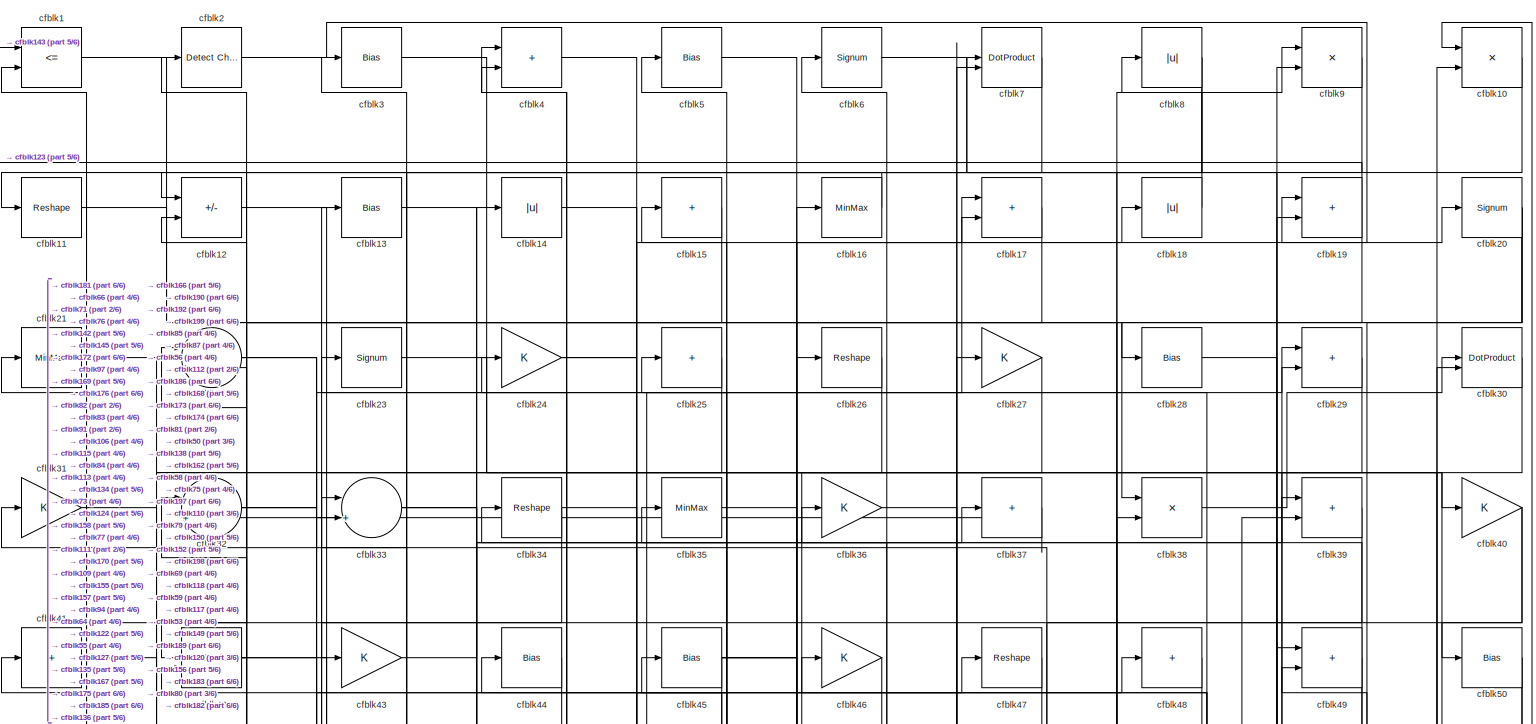
[diagram: root canvas - part 1/6, full width, top band]
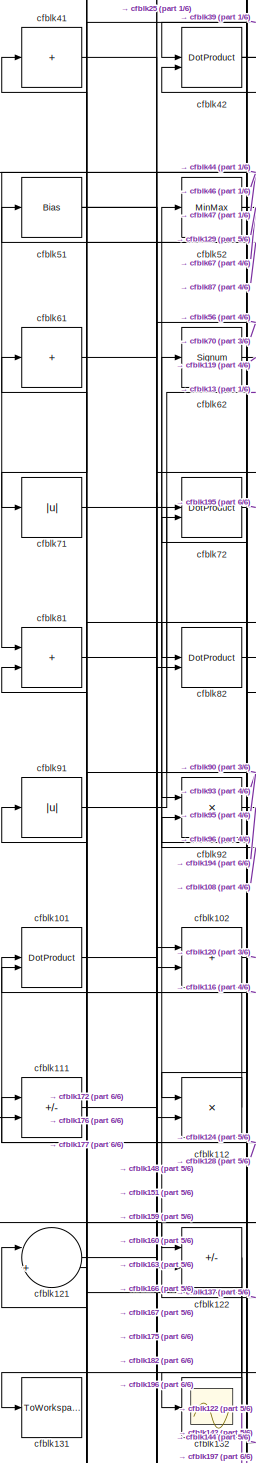
[diagram: root canvas - part 2/6, middle left region]
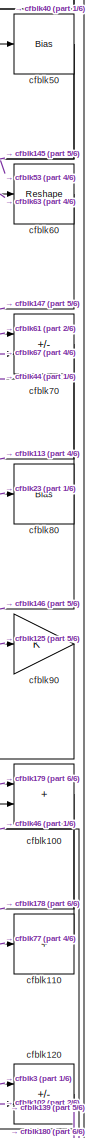
[diagram: root canvas - part 3/6, middle right region]
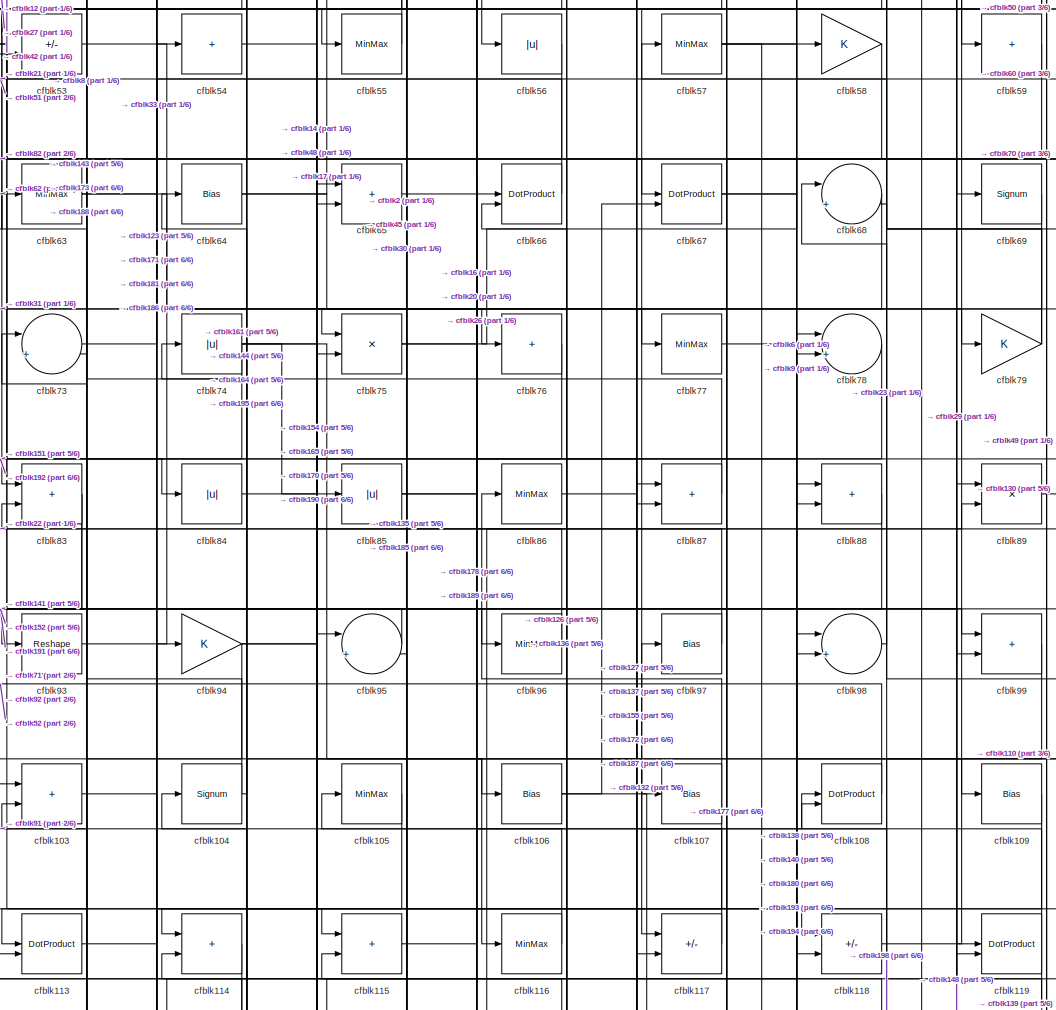
[diagram: root canvas - part 4/6, central region]
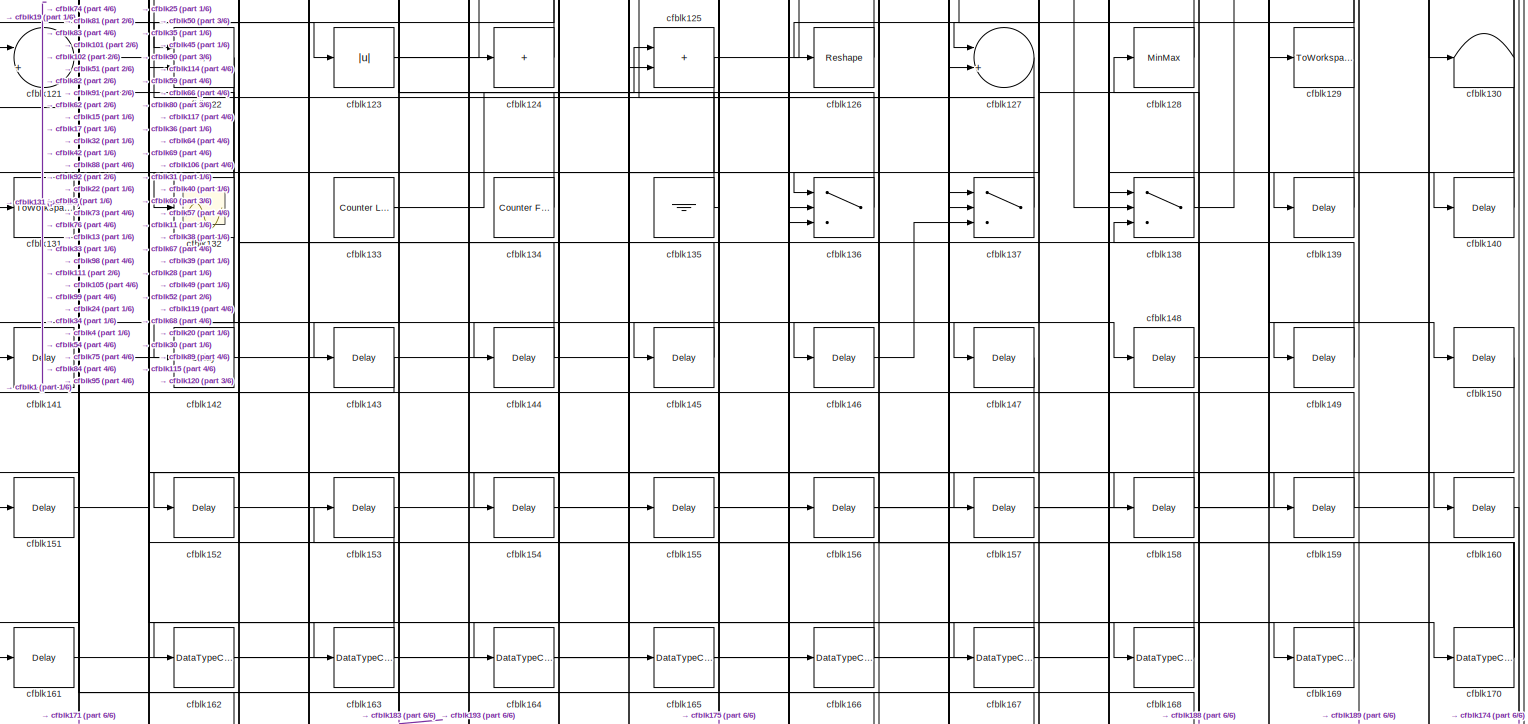
[diagram: root canvas - part 5/6, full width, bottom band]
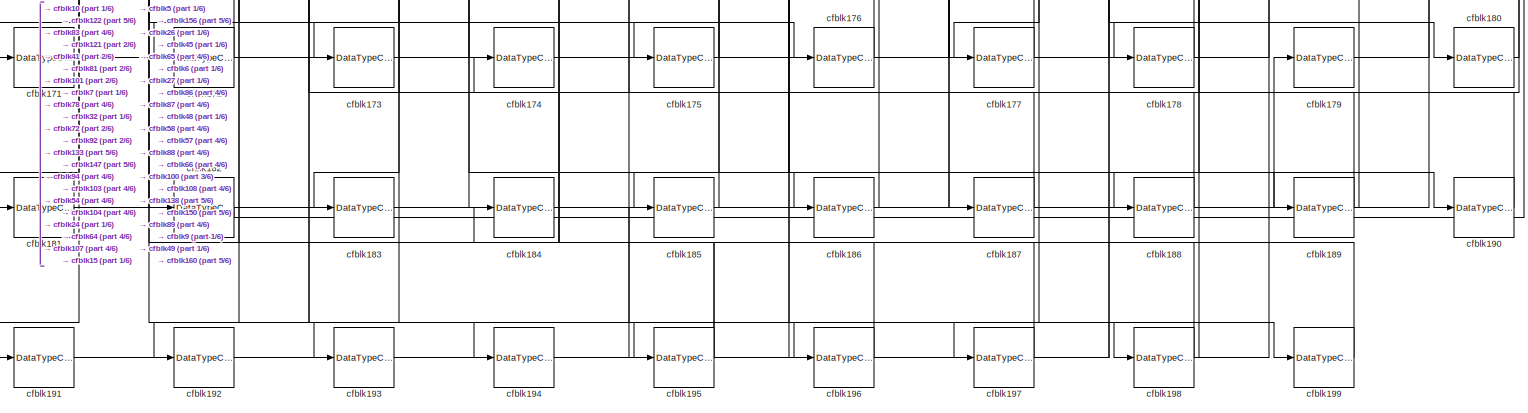
[diagram: root canvas - part 6/6, full width, bottom band]
MODEL slx_b012cb5eb17d
KIND model
CONFIG AbsTol = auto
CONFIG EnableMultiTasking = off
CONFIG FixedStep = auto
CONFIG MaxStep = auto
CONFIG MinStep = auto
CONFIG RelTol = 1e-3
CONFIG SampleTimeConstraint = Unconstrained
CONFIG SolverName = VariableStepAuto
CONFIG StartTime = 0.0
CONFIG StopTime = 10.0
BLOCK [RelationalOperator] cfblk1
  InputSameDT = off
  Operator = <=
  OutDataTypeStr = boolean
BLOCK [Product] cfblk10
  Inputs = */
  RndMeth = Zero
  SaturateOnIntegerOverflow = on
BLOCK [Sum] cfblk100
  IconShape = rectangular
BLOCK [DotProduct] cfblk101
  OutDataTypeStr = Inherit: Inherit via internal rule
BLOCK [Sum] cfblk102
  IconShape = rectangular
BLOCK [Sum] cfblk103
  IconShape = rectangular
BLOCK [Signum] cfblk104
BLOCK [MinMax] cfblk105
BLOCK [Bias] cfblk106
  Bias = 0.0
  SaturateOnIntegerOverflow = off
BLOCK [Bias] cfblk107
  Bias = 0.0
  SaturateOnIntegerOverflow = off
BLOCK [DotProduct] cfblk108
  OutDataTypeStr = Inherit: Inherit via internal rule
BLOCK [Bias] cfblk109
  Bias = 0.0
  SaturateOnIntegerOverflow = off
BLOCK [Reshape] cfblk11
BLOCK [Sum] cfblk110
  IconShape = rectangular
  Inputs = +
BLOCK [Sum] cfblk111
  IconShape = rectangular
  Inputs = +-
BLOCK [Product] cfblk112
  Inputs = */
  RndMeth = Zero
  SaturateOnIntegerOverflow = on
BLOCK [DotProduct] cfblk113
  OutDataTypeStr = Inherit: Inherit via internal rule
BLOCK [Sum] cfblk114
  IconShape = rectangular
BLOCK [Sum] cfblk115
  IconShape = rectangular
BLOCK [MinMax] cfblk116
BLOCK [Sum] cfblk117
  IconShape = rectangular
  Inputs = +-
BLOCK [Sum] cfblk118
  IconShape = rectangular
  Inputs = +-
BLOCK [DotProduct] cfblk119
  OutDataTypeStr = Inherit: Inherit via internal rule
BLOCK [Sum] cfblk12
  IconShape = rectangular
  Inputs = +-
BLOCK [Sum] cfblk120
  IconShape = rectangular
  Inputs = +-
BLOCK [Sum] cfblk121
  Inputs = |++
BLOCK [Sum] cfblk122
  IconShape = rectangular
  Inputs = +-
BLOCK [Abs] cfblk123
  SaturateOnIntegerOverflow = off
BLOCK [Sum] cfblk124
  IconShape = rectangular
  Inputs = +
BLOCK [Sum] cfblk125
  IconShape = rectangular
BLOCK [Reshape] cfblk126
BLOCK [Sum] cfblk127
  Inputs = |++
BLOCK [MinMax] cfblk128
BLOCK [ToWorkspace] cfblk129
  MaxDataPoints = inf
  SampleTime = -1
  SaveFormat = Timeseries
  VariableName = simout
BLOCK [Bias] cfblk13
  Bias = 0.0
  SaturateOnIntegerOverflow = off
BLOCK [Terminator] cfblk130
BLOCK [ToWorkspace] cfblk131
  MaxDataPoints = inf
  SampleTime = -1
  SaveFormat = Timeseries
  VariableName = simout
BLOCK [Scope] cfblk132
  Floating = off
  NumInputPorts = 1
  ScopeSpecificationString = Simulink.scopes.TimeScopeBlockCfg('CurrentConfiguration', extmgr.ConfigurationSet(extmgr.Configuration('Core','General UI',true),extmgr.Configuration('Core','Source UI',true),extmgr.Configuration('Sources','WiredSimulink',true,'DataLoggingVariableName','ScopeData2','DataLoggingSaveFormat','Array','DataLoggingLimitDataPoints',true,'DataLoggingDecimation','1'),extmgr.Configuration('Visuals','Time Do...<+868ch>
BLOCK [Reference] cfblk133  REF=hdlsllib/Sources/Counter
Limited
  SourceBlock = hdlsllib/Sources/Counter\nLimited
  SourceType = Counter Limited
BLOCK [Reference] cfblk134  REF=hdlsllib/Sources/Counter
Free-Running
  SourceBlock = hdlsllib/Sources/Counter\nFree-Running
  SourceType = Counter Free-Running
BLOCK [Ground] cfblk135
BLOCK [Switch] cfblk136
  InputSameDT = off
  SaturateOnIntegerOverflow = off
BLOCK [Switch] cfblk137
  InputSameDT = off
  SaturateOnIntegerOverflow = off
BLOCK [Switch] cfblk138
  InputSameDT = off
  SaturateOnIntegerOverflow = off
BLOCK [Delay] cfblk139
  InputPortMap = u0
  SampleTime = 1
BLOCK [Abs] cfblk14
  SaturateOnIntegerOverflow = off
BLOCK [Delay] cfblk140
  InputPortMap = u0
  SampleTime = 1
BLOCK [Delay] cfblk141
  InputPortMap = u0
  SampleTime = 1
BLOCK [Delay] cfblk142
  InputPortMap = u0
  SampleTime = 1
BLOCK [Delay] cfblk143
  InputPortMap = u0
  SampleTime = 1
BLOCK [Delay] cfblk144
  InputPortMap = u0
  SampleTime = 1
BLOCK [Delay] cfblk145
  InputPortMap = u0
  SampleTime = 1
BLOCK [Delay] cfblk146
  InputPortMap = u0
  SampleTime = 1
BLOCK [Delay] cfblk147
  InputPortMap = u0
  SampleTime = 1
BLOCK [Delay] cfblk148
  InputPortMap = u0
  SampleTime = 1
BLOCK [Delay] cfblk149
  InputPortMap = u0
  SampleTime = 1
BLOCK [Sum] cfblk15
  IconShape = rectangular
  Inputs = +
BLOCK [Delay] cfblk150
  InputPortMap = u0
  SampleTime = 1
BLOCK [Delay] cfblk151
  InputPortMap = u0
  SampleTime = 1
BLOCK [Delay] cfblk152
  InputPortMap = u0
  SampleTime = 1
BLOCK [Delay] cfblk153
  InputPortMap = u0
  SampleTime = 1
BLOCK [Delay] cfblk154
  InputPortMap = u0
  SampleTime = 1
BLOCK [Delay] cfblk155
  InputPortMap = u0
  SampleTime = 1
BLOCK [Delay] cfblk156
  InputPortMap = u0
  SampleTime = 1
BLOCK [Delay] cfblk157
  InputPortMap = u0
  SampleTime = 1
BLOCK [Delay] cfblk158
  InputPortMap = u0
  SampleTime = 1
BLOCK [Delay] cfblk159
  InputPortMap = u0
  SampleTime = 1
BLOCK [MinMax] cfblk16
BLOCK [Delay] cfblk160
  InputPortMap = u0
  SampleTime = 1
BLOCK [Delay] cfblk161
  InputPortMap = u0
  SampleTime = 1
BLOCK [DataTypeConversion] cfblk162
  OutDataTypeStr = uint8
  RndMeth = Floor
  SaturateOnIntegerOverflow = off
BLOCK [DataTypeConversion] cfblk163
  OutDataTypeStr = uint8
  RndMeth = Floor
  SaturateOnIntegerOverflow = off
BLOCK [DataTypeConversion] cfblk164
  OutDataTypeStr = uint8
  RndMeth = Floor
  SaturateOnIntegerOverflow = off
BLOCK [DataTypeConversion] cfblk165
  OutDataTypeStr = uint8
  RndMeth = Floor
  SaturateOnIntegerOverflow = off
BLOCK [DataTypeConversion] cfblk166
  OutDataTypeStr = uint8
  RndMeth = Floor
  SaturateOnIntegerOverflow = off
BLOCK [DataTypeConversion] cfblk167
  OutDataTypeStr = uint8
  RndMeth = Floor
  SaturateOnIntegerOverflow = off
BLOCK [DataTypeConversion] cfblk168
  OutDataTypeStr = uint8
  RndMeth = Floor
  SaturateOnIntegerOverflow = off
BLOCK [DataTypeConversion] cfblk169
  OutDataTypeStr = uint8
  RndMeth = Floor
  SaturateOnIntegerOverflow = off
BLOCK [Sum] cfblk17
  IconShape = rectangular
BLOCK [DataTypeConversion] cfblk170
  RndMeth = Floor
  SaturateOnIntegerOverflow = off
BLOCK [DataTypeConversion] cfblk171
  OutDataTypeStr = uint8
  RndMeth = Floor
  SaturateOnIntegerOverflow = off
BLOCK [DataTypeConversion] cfblk172
  RndMeth = Floor
  SaturateOnIntegerOverflow = off
BLOCK [DataTypeConversion] cfblk173
  OutDataTypeStr = uint8
  RndMeth = Floor
  SaturateOnIntegerOverflow = off
BLOCK [DataTypeConversion] cfblk174
  OutDataTypeStr = uint8
  RndMeth = Floor
  SaturateOnIntegerOverflow = off
BLOCK [DataTypeConversion] cfblk175
  RndMeth = Floor
  SaturateOnIntegerOverflow = off
BLOCK [DataTypeConversion] cfblk176
  OutDataTypeStr = uint8
  RndMeth = Floor
  SaturateOnIntegerOverflow = off
BLOCK [DataTypeConversion] cfblk177
  OutDataTypeStr = uint8
  RndMeth = Floor
  SaturateOnIntegerOverflow = off
BLOCK [DataTypeConversion] cfblk178
  OutDataTypeStr = uint8
  RndMeth = Floor
  SaturateOnIntegerOverflow = off
BLOCK [DataTypeConversion] cfblk179
  OutDataTypeStr = uint8
  RndMeth = Floor
  SaturateOnIntegerOverflow = off
BLOCK [Abs] cfblk18
  SaturateOnIntegerOverflow = off
BLOCK [DataTypeConversion] cfblk180
  OutDataTypeStr = uint8
  RndMeth = Floor
  SaturateOnIntegerOverflow = off
BLOCK [DataTypeConversion] cfblk181
  RndMeth = Floor
  SaturateOnIntegerOverflow = off
BLOCK [DataTypeConversion] cfblk182
  OutDataTypeStr = uint8
  RndMeth = Floor
  SaturateOnIntegerOverflow = off
BLOCK [DataTypeConversion] cfblk183
  OutDataTypeStr = uint8
  RndMeth = Floor
  SaturateOnIntegerOverflow = off
BLOCK [DataTypeConversion] cfblk184
  RndMeth = Floor
  SaturateOnIntegerOverflow = off
BLOCK [DataTypeConversion] cfblk185
  OutDataTypeStr = uint8
  RndMeth = Floor
  SaturateOnIntegerOverflow = off
BLOCK [DataTypeConversion] cfblk186
  OutDataTypeStr = uint8
  RndMeth = Floor
  SaturateOnIntegerOverflow = off
BLOCK [DataTypeConversion] cfblk187
  OutDataTypeStr = uint8
  RndMeth = Floor
  SaturateOnIntegerOverflow = off
BLOCK [DataTypeConversion] cfblk188
  OutDataTypeStr = uint8
  RndMeth = Floor
  SaturateOnIntegerOverflow = off
BLOCK [DataTypeConversion] cfblk189
  RndMeth = Floor
  SaturateOnIntegerOverflow = off
BLOCK [Sum] cfblk19
  IconShape = rectangular
BLOCK [DataTypeConversion] cfblk190
  OutDataTypeStr = uint8
  RndMeth = Floor
  SaturateOnIntegerOverflow = off
BLOCK [DataTypeConversion] cfblk191
  OutDataTypeStr = uint8
  RndMeth = Floor
  SaturateOnIntegerOverflow = off
BLOCK [DataTypeConversion] cfblk192
  OutDataTypeStr = uint8
  RndMeth = Floor
  SaturateOnIntegerOverflow = off
BLOCK [DataTypeConversion] cfblk193
  OutDataTypeStr = uint8
  RndMeth = Floor
  SaturateOnIntegerOverflow = off
BLOCK [DataTypeConversion] cfblk194
  OutDataTypeStr = uint8
  RndMeth = Floor
  SaturateOnIntegerOverflow = off
BLOCK [DataTypeConversion] cfblk195
  RndMeth = Floor
  SaturateOnIntegerOverflow = off
BLOCK [DataTypeConversion] cfblk196
  OutDataTypeStr = uint8
  RndMeth = Floor
  SaturateOnIntegerOverflow = off
BLOCK [DataTypeConversion] cfblk197
  OutDataTypeStr = uint8
  RndMeth = Floor
  SaturateOnIntegerOverflow = off
BLOCK [DataTypeConversion] cfblk198
  RndMeth = Floor
  SaturateOnIntegerOverflow = off
BLOCK [DataTypeConversion] cfblk199
  OutDataTypeStr = uint8
  RndMeth = Floor
  SaturateOnIntegerOverflow = off
BLOCK [Reference] cfblk2  REF=simulink/Logic and Bit
Operations/Detect
Change
  LibrarySourceBlock = hdlsllib/Logic and Bit\nOperations/Detect\nChange
  SourceBlock = simulink/Logic and Bit\nOperations/Detect\nChange
  SourceType = Detect Change
BLOCK [Signum] cfblk20
BLOCK [MinMax] cfblk21
BLOCK [Sum] cfblk22
  Inputs = |++
BLOCK [Signum] cfblk23
BLOCK [Gain] cfblk24
BLOCK [Sum] cfblk25
  IconShape = rectangular
  Inputs = +
BLOCK [Reshape] cfblk26
BLOCK [Gain] cfblk27
BLOCK [Bias] cfblk28
  Bias = 0.0
  SaturateOnIntegerOverflow = off
BLOCK [Sum] cfblk29
  IconShape = rectangular
BLOCK [Bias] cfblk3
  Bias = 0.0
  SaturateOnIntegerOverflow = off
BLOCK [DotProduct] cfblk30
  OutDataTypeStr = Inherit: Inherit via internal rule
BLOCK [Gain] cfblk31
BLOCK [Sum] cfblk32
  Inputs = |++
BLOCK [Sum] cfblk33
  Inputs = |++
BLOCK [Reshape] cfblk34
BLOCK [MinMax] cfblk35
BLOCK [Gain] cfblk36
BLOCK [Sum] cfblk37
  IconShape = rectangular
  Inputs = +
BLOCK [Product] cfblk38
  Inputs = */
  RndMeth = Zero
  SaturateOnIntegerOverflow = on
BLOCK [Sum] cfblk39
  IconShape = rectangular
BLOCK [Sum] cfblk4
  IconShape = rectangular
BLOCK [Gain] cfblk40
BLOCK [Sum] cfblk41
  IconShape = rectangular
  Inputs = +
BLOCK [DotProduct] cfblk42
  OutDataTypeStr = Inherit: Inherit via internal rule
BLOCK [Gain] cfblk43
BLOCK [Bias] cfblk44
  Bias = 0.0
  SaturateOnIntegerOverflow = off
BLOCK [Bias] cfblk45
  Bias = 0.0
  SaturateOnIntegerOverflow = off
BLOCK [Gain] cfblk46
BLOCK [Reshape] cfblk47
BLOCK [Sum] cfblk48
  IconShape = rectangular
  Inputs = +
BLOCK [Sum] cfblk49
  IconShape = rectangular
BLOCK [Bias] cfblk5
  Bias = 0.0
  SaturateOnIntegerOverflow = off
BLOCK [Bias] cfblk50
  Bias = 0.0
  SaturateOnIntegerOverflow = off
BLOCK [Bias] cfblk51
  Bias = 0.0
  SaturateOnIntegerOverflow = off
BLOCK [MinMax] cfblk52
BLOCK [Sum] cfblk53
  IconShape = rectangular
  Inputs = +-
BLOCK [Sum] cfblk54
  IconShape = rectangular
  Inputs = +
BLOCK [MinMax] cfblk55
BLOCK [Abs] cfblk56
  SaturateOnIntegerOverflow = off
BLOCK [MinMax] cfblk57
BLOCK [Gain] cfblk58
BLOCK [Sum] cfblk59
  IconShape = rectangular
  Inputs = +
BLOCK [Signum] cfblk6
BLOCK [Reshape] cfblk60
BLOCK [Sum] cfblk61
  IconShape = rectangular
  Inputs = +
BLOCK [Signum] cfblk62
BLOCK [MinMax] cfblk63
BLOCK [Bias] cfblk64
  Bias = 0.0
  SaturateOnIntegerOverflow = off
BLOCK [Sum] cfblk65
  IconShape = rectangular
BLOCK [DotProduct] cfblk66
  OutDataTypeStr = Inherit: Inherit via internal rule
BLOCK [DotProduct] cfblk67
  OutDataTypeStr = Inherit: Inherit via internal rule
BLOCK [Sum] cfblk68
  Inputs = |++
BLOCK [Signum] cfblk69
BLOCK [DotProduct] cfblk7
  OutDataTypeStr = Inherit: Inherit via internal rule
BLOCK [Sum] cfblk70
  IconShape = rectangular
  Inputs = +-
BLOCK [Abs] cfblk71
  SaturateOnIntegerOverflow = off
BLOCK [DotProduct] cfblk72
  OutDataTypeStr = Inherit: Inherit via internal rule
BLOCK [Sum] cfblk73
  Inputs = |++
BLOCK [Abs] cfblk74
  SaturateOnIntegerOverflow = off
BLOCK [Product] cfblk75
  Inputs = */
  RndMeth = Zero
  SaturateOnIntegerOverflow = on
BLOCK [Sum] cfblk76
  IconShape = rectangular
  Inputs = +
BLOCK [MinMax] cfblk77
BLOCK [Sum] cfblk78
  Inputs = |++
BLOCK [Gain] cfblk79
BLOCK [Abs] cfblk8
  SaturateOnIntegerOverflow = off
BLOCK [Bias] cfblk80
  Bias = 0.0
  SaturateOnIntegerOverflow = off
BLOCK [Sum] cfblk81
  IconShape = rectangular
BLOCK [DotProduct] cfblk82
  OutDataTypeStr = Inherit: Inherit via internal rule
BLOCK [Sum] cfblk83
  IconShape = rectangular
BLOCK [Abs] cfblk84
  SaturateOnIntegerOverflow = off
BLOCK [Abs] cfblk85
  SaturateOnIntegerOverflow = off
BLOCK [MinMax] cfblk86
BLOCK [Sum] cfblk87
  IconShape = rectangular
BLOCK [Sum] cfblk88
  IconShape = rectangular
BLOCK [Product] cfblk89
  Inputs = */
  RndMeth = Zero
  SaturateOnIntegerOverflow = on
BLOCK [Product] cfblk9
  Inputs = */
  RndMeth = Zero
  SaturateOnIntegerOverflow = on
BLOCK [Gain] cfblk90
BLOCK [Abs] cfblk91
  SaturateOnIntegerOverflow = off
BLOCK [Product] cfblk92
  Inputs = */
  RndMeth = Zero
  SaturateOnIntegerOverflow = on
BLOCK [Reshape] cfblk93
BLOCK [Gain] cfblk94
BLOCK [Sum] cfblk95
  Inputs = |++
BLOCK [MinMax] cfblk96
BLOCK [Bias] cfblk97
  Bias = 0.0
  SaturateOnIntegerOverflow = off
BLOCK [Sum] cfblk98
  Inputs = |++
BLOCK [Sum] cfblk99
  IconShape = rectangular
LINE cfblk100:1 -> cfblk178:1
NET cfblk101:1 -> cfblk163:1, cfblk41:1
LINE cfblk102:1 -> cfblk120:2
LINE cfblk103:1 -> cfblk186:1
NET cfblk104:1 -> cfblk63:1, cfblk74:1
LINE cfblk105:1 -> cfblk164:1
NET cfblk106:1 -> cfblk132:1, cfblk67:2
NET cfblk107:1 -> cfblk185:1, cfblk86:1
LINE cfblk108:1 -> cfblk52:1
LINE cfblk109:1 -> cfblk114:1
LINE cfblk10:1 -> cfblk181:1
LINE cfblk110:1 -> cfblk46:1
LINE cfblk111:1 -> cfblk167:1
LINE cfblk112:1 -> cfblk61:1
LINE cfblk113:1 -> cfblk118:1
LINE cfblk114:1 -> cfblk161:1
LINE cfblk115:1 -> cfblk108:1
LINE cfblk116:1 -> cfblk91:1
LINE cfblk117:1 -> cfblk97:1
LINE cfblk118:1 -> cfblk29:1
NET cfblk119:1 -> cfblk126:1, cfblk95:2
LINE cfblk11:1 -> cfblk138:1
LINE cfblk120:1 -> cfblk139:1
LINE cfblk121:1 -> cfblk175:1
NET cfblk122:1 -> cfblk131:1, cfblk171:1
NET cfblk123:1 -> cfblk39:1, cfblk98:2
LINE cfblk124:1 -> cfblk111:1
NET cfblk125:1 -> cfblk154:1, cfblk90:1
LINE cfblk126:1 -> cfblk114:2
LINE cfblk127:1 -> cfblk25:1
LINE cfblk128:1 -> cfblk101:1
LINE cfblk12:1 -> cfblk115:1
NET cfblk133:1 -> cfblk125:1, cfblk183:1
LINE cfblk134:1 -> cfblk33:1
NET cfblk135:1 -> cfblk45:1, cfblk73:1
LINE cfblk136:1 -> cfblk3:1
LINE cfblk137:1 -> cfblk62:1
NET cfblk138:1 -> cfblk31:1, cfblk39:2
LINE cfblk139:1 -> cfblk68:1
LINE cfblk13:1 -> cfblk124:1
LINE cfblk140:1 -> cfblk115:2
LINE cfblk141:1 -> cfblk95:1
LINE cfblk142:1 -> cfblk81:2
LINE cfblk143:1 -> cfblk1:1
LINE cfblk144:1 -> cfblk92:2
LINE cfblk145:1 -> cfblk22:1
LINE cfblk146:1 -> cfblk137:3
LINE cfblk147:1 -> cfblk193:1
LINE cfblk148:1 -> cfblk119:2
LINE cfblk149:1 -> cfblk32:1
LINE cfblk14:1 -> cfblk109:1
LINE cfblk150:1 -> cfblk188:1
LINE cfblk151:1 -> cfblk82:2
LINE cfblk152:1 -> cfblk49:1
LINE cfblk153:1 -> cfblk162:1
LINE cfblk154:1 -> cfblk75:2
LINE cfblk155:1 -> cfblk117:2
LINE cfblk156:1 -> cfblk30:2
LINE cfblk157:1 -> cfblk19:2
LINE cfblk158:1 -> cfblk1:2
LINE cfblk159:1 -> cfblk137:1
LINE cfblk15:1 -> cfblk122:1
LINE cfblk160:1 -> cfblk174:1
LINE cfblk161:1 -> cfblk98:1
LINE cfblk162:1 -> cfblk38:2
LINE cfblk163:1 -> cfblk153:1
LINE cfblk164:1 -> cfblk125:2
LINE cfblk165:1 -> cfblk105:1
LINE cfblk166:1 -> cfblk102:1
LINE cfblk167:1 -> cfblk35:1
LINE cfblk168:1 -> cfblk34:1
LINE cfblk169:1 -> cfblk36:1
LINE cfblk16:1 -> cfblk11:1
NET cfblk170:1 -> cfblk128:1, cfblk42:2, cfblk4:2, cfblk66:2
LINE cfblk171:1 -> cfblk54:1
NET cfblk172:1 -> cfblk101:2, cfblk87:1, cfblk88:1, cfblk89:1
LINE cfblk173:1 -> cfblk7:1
LINE cfblk174:1 -> cfblk7:2
NET cfblk175:1 -> cfblk156:1, cfblk15:1
LINE cfblk176:1 -> cfblk121:1
LINE cfblk177:1 -> cfblk121:2
LINE cfblk178:1 -> cfblk66:1
LINE cfblk179:1 -> cfblk100:1
LINE cfblk17:1 -> cfblk142:1
LINE cfblk180:1 -> cfblk100:2
NET cfblk181:1 -> cfblk179:1, cfblk27:1, cfblk94:1
LINE cfblk182:1 -> cfblk10:1
LINE cfblk183:1 -> cfblk10:2
LINE cfblk184:1 -> cfblk198:1
LINE cfblk185:1 -> cfblk5:1
LINE cfblk186:1 -> cfblk6:1
LINE cfblk187:1 -> cfblk103:1
LINE cfblk188:1 -> cfblk103:2
NET cfblk189:1 -> cfblk138:3, cfblk49:2
LINE cfblk18:1 -> cfblk8:1
LINE cfblk190:1 -> cfblk65:1
LINE cfblk191:1 -> cfblk65:2
LINE cfblk192:1 -> cfblk26:1
LINE cfblk193:1 -> cfblk78:1
LINE cfblk194:1 -> cfblk78:2
NET cfblk195:1 -> cfblk104:1, cfblk64:1
LINE cfblk196:1 -> cfblk72:1
LINE cfblk197:1 -> cfblk72:2
NET cfblk198:1 -> cfblk108:2, cfblk24:1, cfblk9:2
LINE cfblk199:1 -> cfblk184:1
NET cfblk19:1 -> cfblk123:1, cfblk42:1
LINE cfblk1:1 -> cfblk38:1
NET cfblk20:1 -> cfblk136:2, cfblk149:1, cfblk28:1
LINE cfblk21:1 -> cfblk40:1
NET cfblk22:1 -> cfblk169:1, cfblk33:2
LINE cfblk23:1 -> cfblk80:1
NET cfblk24:1 -> cfblk136:3, cfblk17:2
LINE cfblk25:1 -> cfblk112:2
LINE cfblk26:1 -> cfblk56:1
LINE cfblk27:1 -> cfblk83:1
LINE cfblk28:1 -> cfblk150:1
LINE cfblk29:1 -> cfblk59:1
LINE cfblk2:1 -> cfblk19:1
LINE cfblk30:1 -> cfblk55:1
LINE cfblk31:1 -> cfblk76:1
NET cfblk32:1 -> cfblk176:1, cfblk29:2
NET cfblk33:1 -> cfblk158:1, cfblk77:1
NET cfblk34:1 -> cfblk157:1, cfblk43:1
LINE cfblk35:1 -> cfblk166:1
LINE cfblk36:1 -> cfblk168:1
LINE cfblk37:1 -> cfblk32:2
LINE cfblk38:1 -> cfblk30:1
LINE cfblk39:1 -> cfblk71:1
LINE cfblk3:1 -> cfblk120:1
NET cfblk40:1 -> cfblk127:1, cfblk50:1
LINE cfblk41:1 -> cfblk196:1
NET cfblk42:1 -> cfblk106:1, cfblk12:2, cfblk84:1
LINE cfblk43:1 -> cfblk37:1
LINE cfblk44:1 -> cfblk111:2
NET cfblk45:1 -> cfblk122:2, cfblk18:1, cfblk190:1, cfblk87:2
LINE cfblk46:1 -> cfblk112:1
LINE cfblk47:1 -> cfblk81:1
LINE cfblk48:1 -> cfblk197:1
NET cfblk49:1 -> cfblk117:1, cfblk4:1, cfblk53:2
LINE cfblk4:1 -> cfblk155:1
NET cfblk50:1 -> cfblk145:1, cfblk53:1
NET cfblk51:1 -> cfblk159:1, cfblk160:1, cfblk96:1
NET cfblk52:1 -> cfblk129:1, cfblk67:1
LINE cfblk53:1 -> cfblk99:1
LINE cfblk54:1 -> cfblk170:1
LINE cfblk55:1 -> cfblk2:1
LINE cfblk56:1 -> cfblk82:1
NET cfblk57:1 -> cfblk118:2, cfblk138:2, cfblk180:1
LINE cfblk58:1 -> cfblk177:1
LINE cfblk59:1 -> cfblk136:1
LINE cfblk5:1 -> cfblk199:1
LINE cfblk60:1 -> cfblk147:1
LINE cfblk61:1 -> cfblk70:1
LINE cfblk62:1 -> cfblk119:1
NET cfblk63:1 -> cfblk60:1, cfblk79:1
NET cfblk64:1 -> cfblk127:2, cfblk17:1
LINE cfblk65:1 -> cfblk189:1
LINE cfblk66:1 -> cfblk21:1
NET cfblk67:1 -> cfblk140:1, cfblk70:2
LINE cfblk68:1 -> cfblk75:1
LINE cfblk69:1 -> cfblk137:2
NET cfblk6:1 -> cfblk58:1, cfblk69:1
LINE cfblk70:1 -> cfblk113:2
LINE cfblk71:1 -> cfblk93:1
LINE cfblk72:1 -> cfblk195:1
LINE cfblk73:1 -> cfblk14:1
NET cfblk74:1 -> cfblk116:1, cfblk151:1, cfblk85:1, cfblk88:2
NET cfblk75:1 -> cfblk107:1, cfblk9:1
LINE cfblk76:1 -> cfblk143:1
LINE cfblk77:1 -> cfblk110:1
LINE cfblk78:1 -> cfblk192:1
NET cfblk79:1 -> cfblk23:1, cfblk57:1
LINE cfblk7:1 -> cfblk172:1
NET cfblk80:1 -> cfblk146:1, cfblk44:1
LINE cfblk81:1 -> cfblk182:1
LINE cfblk82:1 -> cfblk47:1
NET cfblk83:1 -> cfblk141:1, cfblk191:1
LINE cfblk84:1 -> cfblk165:1
NET cfblk85:1 -> cfblk16:1, cfblk20:1
LINE cfblk86:1 -> cfblk187:1
LINE cfblk87:1 -> cfblk51:1
LINE cfblk88:1 -> cfblk152:1
LINE cfblk89:1 -> cfblk130:1
NET cfblk8:1 -> cfblk113:1, cfblk73:2
LINE cfblk90:1 -> cfblk102:2
NET cfblk91:1 -> cfblk13:1, cfblk148:1
LINE cfblk92:1 -> cfblk194:1
LINE cfblk93:1 -> cfblk99:2
NET cfblk94:1 -> cfblk173:1, cfblk48:1, cfblk89:2
LINE cfblk95:1 -> cfblk92:1
LINE cfblk96:1 -> cfblk83:2
LINE cfblk97:1 -> cfblk22:2
LINE cfblk98:1 -> cfblk68:2
LINE cfblk99:1 -> cfblk144:1
LINE cfblk9:1 -> cfblk12:1
note: NET lines group one-source signal fan-out (src -> all destinations, sorted); 1:1 wires keep LINE
